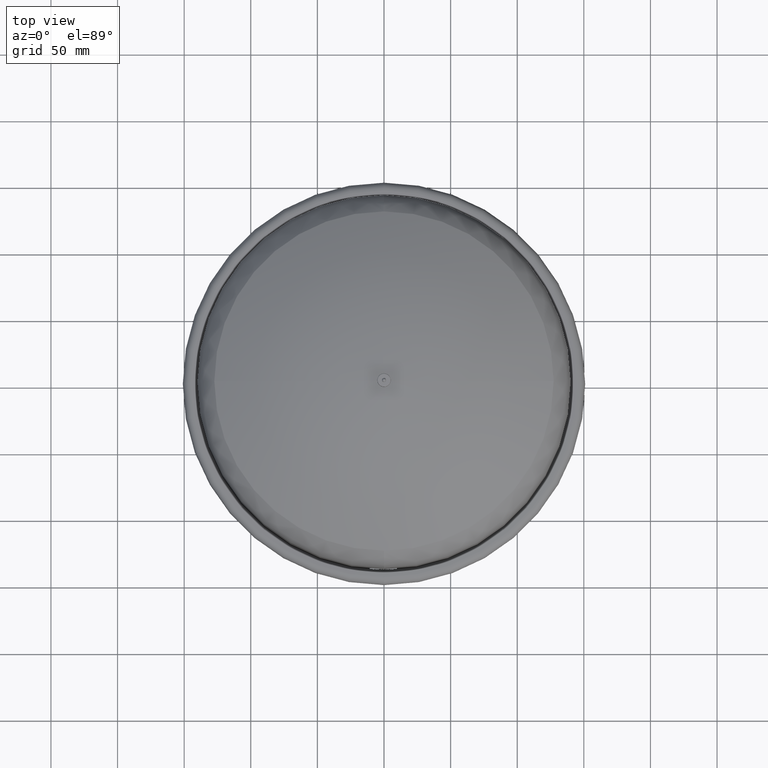
[diagram: clean part render]
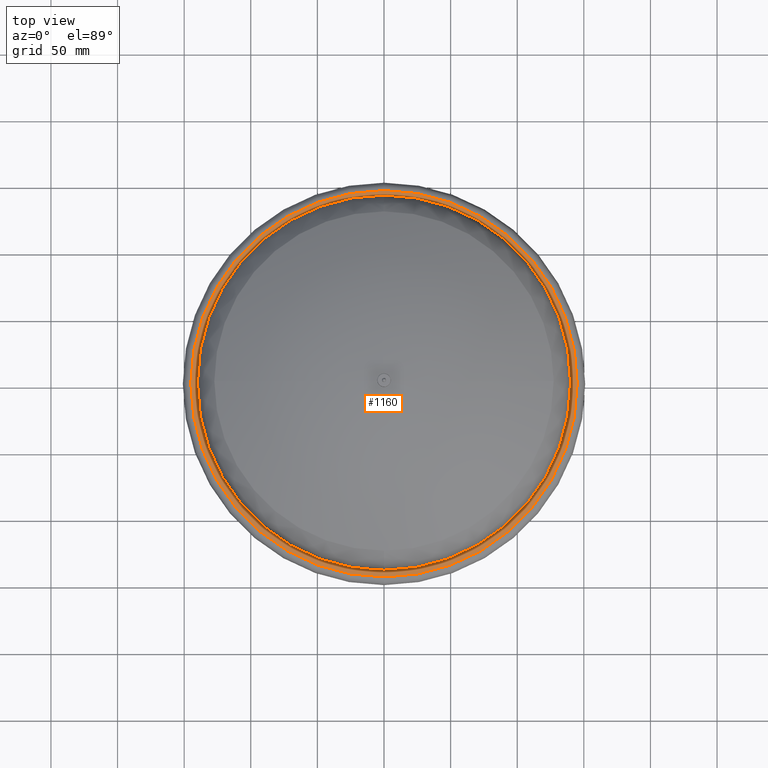
[diagram: same view with one face highlighted and labeled with its STEP entity id]
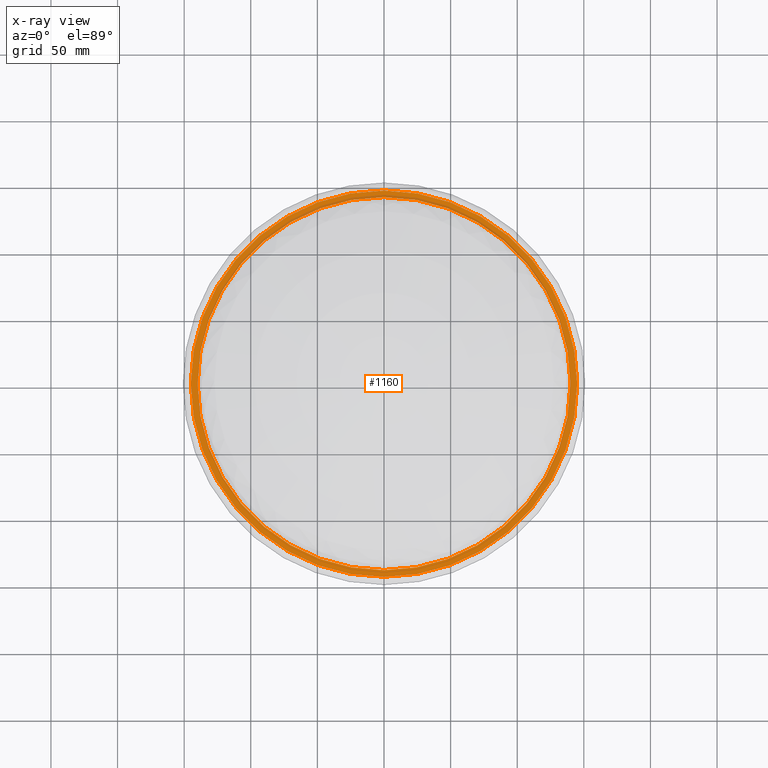
[diagram: x-ray of the same camera — body ghosted, the highlighted face saturated]
A machine part, top view. The second image highlights one B-rep face of the part: STEP entity #1160.
The next image is the same camera in x-ray: the body ghosted, the highlighted face saturated — about 10% of this face is hidden behind the body in this view.
In plain terms, the highlighted planar face has unit normal (0, 0, 1).
Its self-contained STEP definition (entity closure, byte-faithful):
#842=CARTESIAN_POINT('',(-3.389637E-031,-145.00000000000003,184.0));
#843=VERTEX_POINT('',#842);
#853=CARTESIAN_POINT('',(-145.00000000000003,8.881784E-016,184.0));
#854=VERTEX_POINT('',#853);
#855=CARTESIAN_POINT('',(-2.465190E-031,8.881784E-016,184.0));
#856=DIRECTION('',(0.0,0.0,1.0));
#857=DIRECTION('',(-1.0,0.0,0.0));
#858=AXIS2_PLACEMENT_3D('',#855,#856,#857);
#859=CIRCLE('',#858,145.00000000000003);
#860=EDGE_CURVE('',#854,#843,#859,.T.);
#862=CARTESIAN_POINT('',(-1.775679E-014,145.00000000000003,184.0));
#863=VERTEX_POINT('',#862);
#864=CARTESIAN_POINT('',(-2.465190E-031,8.881784E-016,184.0));
#865=DIRECTION('',(0.0,0.0,1.0));
#866=DIRECTION('',(-1.0,0.0,0.0));
#867=AXIS2_PLACEMENT_3D('',#864,#865,#866);
#868=CIRCLE('',#867,145.00000000000003);
#869=EDGE_CURVE('',#863,#854,#868,.T.);
#1006=CARTESIAN_POINT('',(-140.0,8.881784E-016,184.0));
#1007=VERTEX_POINT('',#1006);
#1016=CARTESIAN_POINT('',(140.0,1.807842E-014,184.0));
#1017=VERTEX_POINT('',#1016);
#1018=CARTESIAN_POINT('',(-2.465190E-031,8.881784E-016,184.0));
#1019=DIRECTION('',(0.0,0.0,1.0));
#1020=DIRECTION('',(-1.0,0.0,0.0));
#1021=AXIS2_PLACEMENT_3D('',#1018,#1019,#1020);
#1022=CIRCLE('',#1021,140.0);
#1023=EDGE_CURVE('',#1007,#1017,#1022,.T.);
#1057=CARTESIAN_POINT('',(-2.465190E-031,8.881784E-016,184.0));
#1058=DIRECTION('',(0.0,0.0,1.0));
#1059=DIRECTION('',(-1.0,0.0,0.0));
#1060=AXIS2_PLACEMENT_3D('',#1057,#1058,#1059);
#1061=CIRCLE('',#1060,140.0);
#1062=EDGE_CURVE('',#1017,#1007,#1061,.T.);
#1136=CARTESIAN_POINT('',(-2.465190E-031,8.881784E-016,184.0));
#1137=DIRECTION('',(0.0,0.0,1.0));
#1138=DIRECTION('',(-1.0,0.0,0.0));
#1139=AXIS2_PLACEMENT_3D('',#1136,#1137,#1138);
#1140=CIRCLE('',#1139,145.00000000000003);
#1141=EDGE_CURVE('',#843,#863,#1140,.T.);
#1146=CARTESIAN_POINT('',(-142.5,8.881784E-016,184.0));
#1147=DIRECTION('',(0.0,0.0,1.0));
#1148=DIRECTION('',(0.0,-1.0,0.0));
#1149=AXIS2_PLACEMENT_3D('',#1146,#1147,#1148);
#1150=PLANE('',#1149);
#1151=ORIENTED_EDGE('',*,*,#860,.T.);
#1152=ORIENTED_EDGE('',*,*,#1141,.T.);
#1153=ORIENTED_EDGE('',*,*,#869,.T.);
#1154=EDGE_LOOP('',(#1151,#1152,#1153));
#1155=FACE_OUTER_BOUND('',#1154,.T.);
#1156=ORIENTED_EDGE('',*,*,#1023,.F.);
#1157=ORIENTED_EDGE('',*,*,#1062,.F.);
#1158=EDGE_LOOP('',(#1156,#1157));
#1159=FACE_BOUND('',#1158,.T.);
#1160=ADVANCED_FACE('',(#1155,#1159),#1150,.T.);